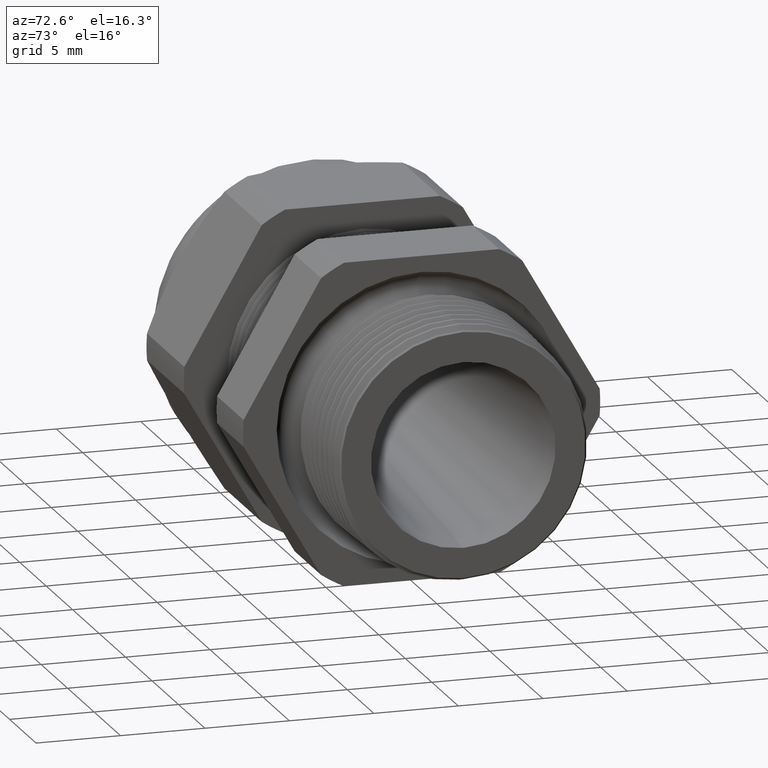
[diagram: clean part render]
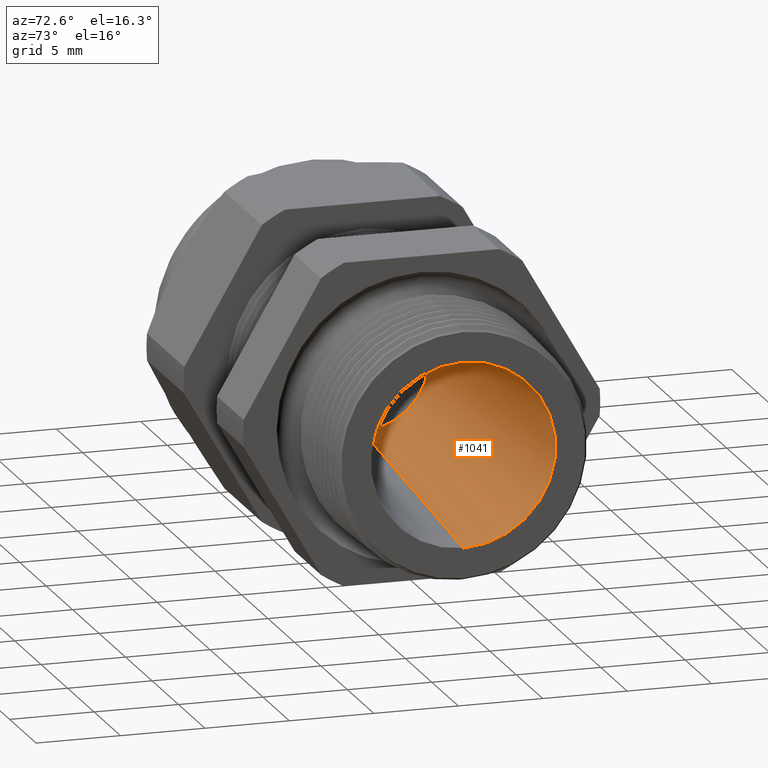
[diagram: same view with one face highlighted and labeled with its STEP entity id]
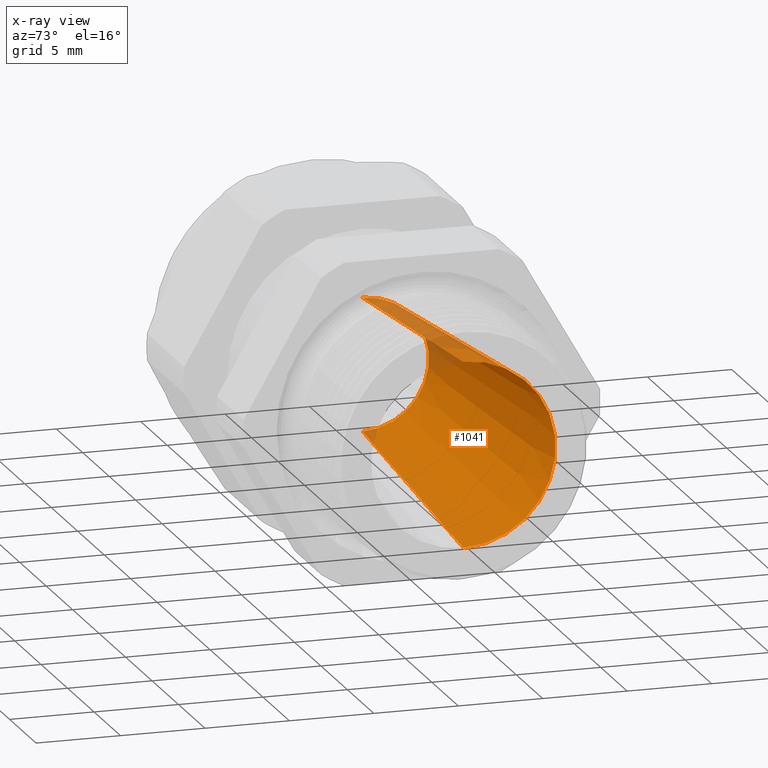
[diagram: x-ray of the same camera — body ghosted, the highlighted face saturated]
A machine part, auxiliary view. The second image highlights one B-rep face of the part: STEP entity #1041.
The next image is the same camera in x-ray: the body ghosted, the highlighted face saturated — about 8% of this face is hidden behind the body in this view.
In plain terms, the highlighted conical surface has half-angle 4.594 deg.
Its self-contained STEP definition (entity closure, byte-faithful):
#377 = VERTEX_POINT ( 'NONE', #2270 ) ;
#429 = EDGE_CURVE ( 'NONE', #449, #377, #2370, .T. ) ;
#432 = VERTEX_POINT ( 'NONE', #2357 ) ;
#435 = EDGE_CURVE ( 'NONE', #453, #432, #2355, .T. ) ;
#449 = VERTEX_POINT ( 'NONE', #2389 ) ;
#453 = VERTEX_POINT ( 'NONE', #2382 ) ;
#1039 = EDGE_CURVE ( 'NONE', #432, #377, #3554, .T. ) ;
#1041 = ADVANCED_FACE ( 'NONE', ( #3555 ), #3613, .F. ) ;
#1042 = EDGE_LOOP ( 'NONE', ( #1043, #1044, #1046, #1047 ) ) ;
#1043 = ORIENTED_EDGE ( 'NONE', *, *, #429, .F. ) ;
#1044 = ORIENTED_EDGE ( 'NONE', *, *, #1045, .F. ) ;
#1045 = EDGE_CURVE ( 'NONE', #453, #449, #3614, .T. ) ;
#1046 = ORIENTED_EDGE ( 'NONE', *, *, #435, .T. ) ;
#1047 = ORIENTED_EDGE ( 'NONE', *, *, #1039, .T. ) ;
#2270 = CARTESIAN_POINT ( 'NONE',  ( 0.0000000000000000000, 2.637128431548126500E-017, 0.2153378781036457100 ) ) ;
#2352 = DIRECTION ( 'NONE',  ( 0.9967868727108976100, 0.0000000000000000000, -0.08009950306480637100 ) ) ;
#2353 = VECTOR ( 'NONE', #2352, 39.37007874015748900 ) ;
#2354 = CARTESIAN_POINT ( 'NONE',  ( -0.7508661417322833900, 0.0000000000000000000, -0.1550000000000000000 ) ) ;
#2355 = LINE ( 'NONE', #2354, #2353 ) ;
#2357 = CARTESIAN_POINT ( 'NONE',  ( 0.0000000000000000000, 0.0000000000000000000, -0.2153378781036457100 ) ) ;
#2363 = DIRECTION ( 'NONE',  ( 0.9967868727108976100, 9.809360004160873700E-018, 0.08009950306480637100 ) ) ;
#2364 = VECTOR ( 'NONE', #2363, 39.37007874015748900 ) ;
#2365 = CARTESIAN_POINT ( 'NONE',  ( -0.7508661417322833900, 1.898202538678397300E-017, 0.1550000000000000000 ) ) ;
#2370 = LINE ( 'NONE', #2365, #2364 ) ;
#2382 = CARTESIAN_POINT ( 'NONE',  ( -0.7508661417322833900, 0.0000000000000000000, -0.1550000000000000000 ) ) ;
#2389 = CARTESIAN_POINT ( 'NONE',  ( -0.7508661417322833900, 2.267665485113261700E-017, 0.1550000000000000000 ) ) ;
#3549 = CARTESIAN_POINT ( 'NONE',  ( -0.7508661417322833900, 0.0000000000000000000, 0.0000000000000000000 ) ) ;
#3550 = DIRECTION ( 'NONE',  ( 0.0000000000000000000, 0.0000000000000000000, -1.000000000000000000 ) ) ;
#3551 = DIRECTION ( 'NONE',  ( 1.000000000000000000, 0.0000000000000000000, 0.0000000000000000000 ) ) ;
#3552 = CARTESIAN_POINT ( 'NONE',  ( 0.0000000000000000000, 0.0000000000000000000, 0.0000000000000000000 ) ) ;
#3553 = AXIS2_PLACEMENT_3D ( 'NONE', #3552, #3551, #3550 ) ;
#3554 = CIRCLE ( 'NONE', #3553, 0.2153378781036457100 ) ;
#3555 = FACE_OUTER_BOUND ( 'NONE', #1042, .T. ) ;
#3606 = DIRECTION ( 'NONE',  ( 0.0000000000000000000, 0.0000000000000000000, -1.000000000000000000 ) ) ;
#3607 = DIRECTION ( 'NONE',  ( 1.000000000000000000, 0.0000000000000000000, 0.0000000000000000000 ) ) ;
#3608 = CARTESIAN_POINT ( 'NONE',  ( -0.7508661417322833900, 0.0000000000000000000, 0.0000000000000000000 ) ) ;
#3609 = AXIS2_PLACEMENT_3D ( 'NONE', #3608, #3607, #3606 ) ;
#3610 = DIRECTION ( 'NONE',  ( 0.0000000000000000000, 0.0000000000000000000, -1.000000000000000000 ) ) ;
#3611 = DIRECTION ( 'NONE',  ( 1.000000000000000000, 0.0000000000000000000, 0.0000000000000000000 ) ) ;
#3612 = AXIS2_PLACEMENT_3D ( 'NONE', #3549, #3611, #3610 ) ;
#3613 = CONICAL_SURFACE ( 'NONE', #3612, 0.1550000000000000000, 0.08018540344487300200 ) ;
#3614 = CIRCLE ( 'NONE', #3609, 0.1550000000000000000 ) ;